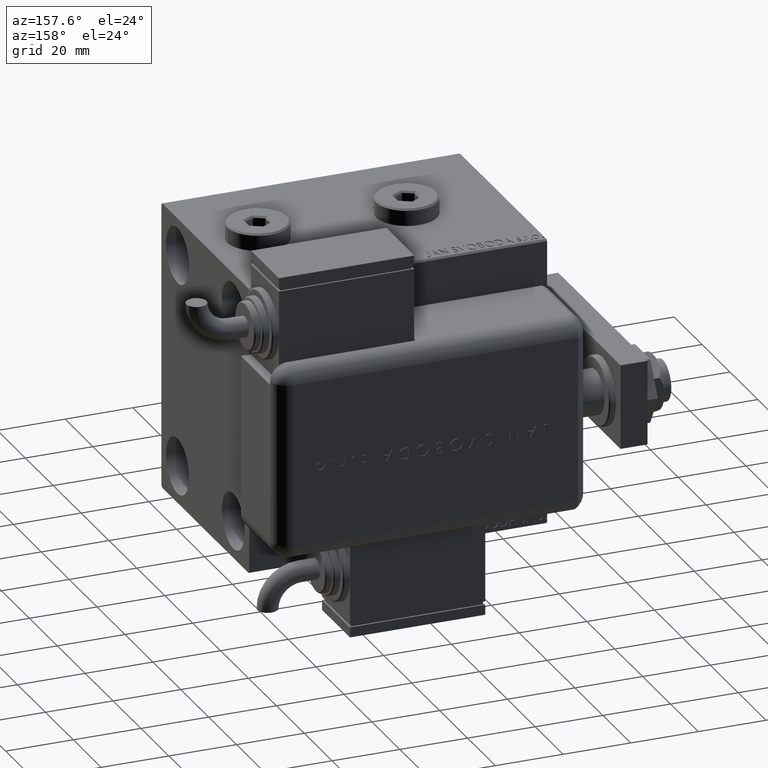
[diagram: clean part render]
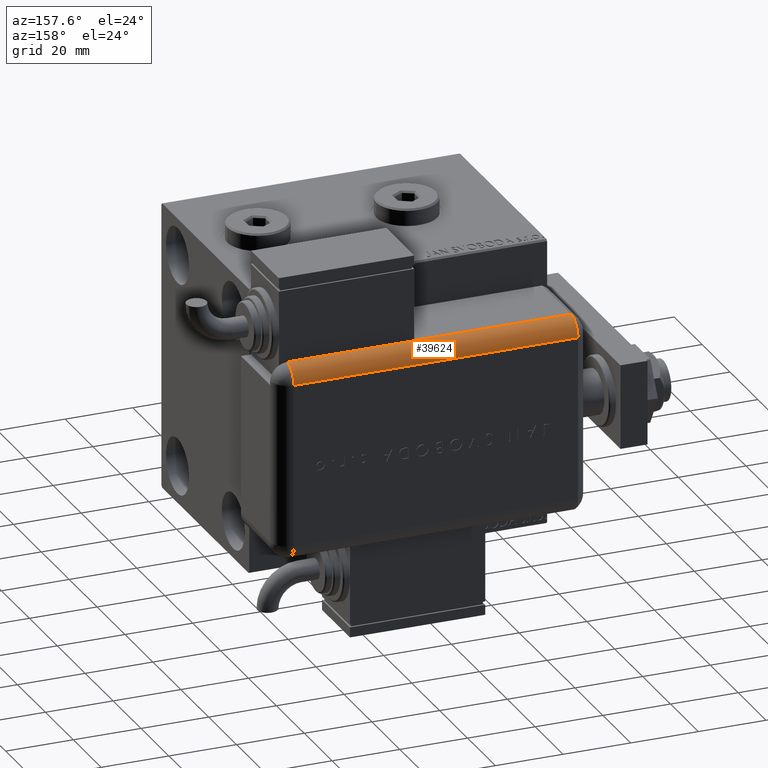
[diagram: same view with one face highlighted and labeled with its STEP entity id]
A machine part, auxiliary view. The second image highlights one B-rep face of the part: STEP entity #39624.
In plain terms, the highlighted cylindrical surface (edge-blend (fillet) strip) has radius 5 mm, axis along (1, -0, -0).
Its self-contained STEP definition (entity closure, byte-faithful):
#1074 = DIRECTION ( 'NONE',  ( -1.000000000000000000, 0.000000000000000000, 0.000000000000000000 ) ) ;
#2116 = LINE ( 'NONE', #57908, #35538 ) ;
#2652 = DIRECTION ( 'NONE',  ( -0.000000000000000000, -0.000000000000000000, 1.000000000000000000 ) ) ;
#3068 = CARTESIAN_POINT ( 'NONE',  ( 28.99999999999999645, 20.79999999999998295, 89.00000000000000000 ) ) ;
#4163 = CARTESIAN_POINT ( 'NONE',  ( 28.99599839871871154, 20.99999999999998579, 89.00000000000000000 ) ) ;
#4927 = VERTEX_POINT ( 'NONE', #5008 ) ;
#5008 = CARTESIAN_POINT ( 'NONE',  ( 28.99999999999999645, 20.79999999999998295, 89.00000000000000000 ) ) ;
#5177 = AXIS2_PLACEMENT_3D ( 'NONE', #47590, #9681, #42670 ) ;
#5309 = VERTEX_POINT ( 'NONE', #60571 ) ;
#5593 = AXIS2_PLACEMENT_3D ( 'NONE', #24508, #48257, #1074 ) ;
#6576 = FACE_OUTER_BOUND ( 'NONE', #57941, .T. ) ;
#8887 = AXIS2_PLACEMENT_3D ( 'NONE', #17134, #2652, #50125 ) ;
#9681 = DIRECTION ( 'NONE',  ( -0.000000000000000000, 0.000000000000000000, -1.000000000000000000 ) ) ;
#11812 = ORIENTED_EDGE ( 'NONE', *, *, #52841, .F. ) ;
#16150 = CARTESIAN_POINT ( 'NONE',  ( 28.99599839871871154, 20.99999999999999289, 43.00000000000000000 ) ) ;
#16758 = CIRCLE ( 'NONE', #8887, 5.000000000000000888 ) ;
#17134 = CARTESIAN_POINT ( 'NONE',  ( 23.99999999999999289, 20.79999999999998295, 5.000000000000004441 ) ) ;
#17570 = LINE ( 'NONE', #3068, #41360 ) ;
#18057 = EDGE_CURVE ( 'NONE', #4927, #57442, #37114, .T. ) ;
#18368 = CARTESIAN_POINT ( 'NONE',  ( 28.99999999999999645, 20.79999999999998295, 43.00000000000000000 ) ) ;
#18858 = EDGE_CURVE ( 'NONE', #5309, #50400, #37172, .T. ) ;
#19212 = ORIENTED_EDGE ( 'NONE', *, *, #26527, .T. ) ;
#20747 = DIRECTION ( 'NONE',  ( 0.000000000000000000, 0.000000000000000000, -1.000000000000000000 ) ) ;
#21497 = ORIENTED_EDGE ( 'NONE', *, *, #41303, .F. ) ;
#22614 = ORIENTED_EDGE ( 'NONE', *, *, #18858, .F. ) ;
#23861 = CARTESIAN_POINT ( 'NONE',  ( 23.99999999999999289, 25.79999999999998295, 5.000000000000004441 ) ) ;
#24508 = CARTESIAN_POINT ( 'NONE',  ( 23.99999999999999289, 20.79999999999998295, 89.00000000000000000 ) ) ;
#25367 = CYLINDRICAL_SURFACE ( 'NONE', #26081, 5.000000000000000888 ) ;
#26081 = AXIS2_PLACEMENT_3D ( 'NONE', #44200, #20747, #58653 ) ;
#26527 = EDGE_CURVE ( 'NONE', #5309, #58328, #16758, .T. ) ;
#26852 = ORIENTED_EDGE ( 'NONE', *, *, #18057, .F. ) ;
#27261 = VECTOR ( 'NONE', #36850, 1000.000000000000000 ) ;
#34180 = DIRECTION ( 'NONE',  ( 0.000000000000000000, 0.000000000000000000, -1.000000000000000000 ) ) ;
#35538 = VECTOR ( 'NONE', #34180, 1000.000000000000000 ) ;
#36693 = CARTESIAN_POINT ( 'NONE',  ( 23.99999999999999289, 25.79999999999998295, 89.00000000000000000 ) ) ;
#36850 = DIRECTION ( 'NONE',  ( -0.000000000000000000, -0.000000000000000000, 1.000000000000000000 ) ) ;
#37114 = CIRCLE ( 'NONE', #5593, 5.000000000000000888 ) ;
#37172 = LINE ( 'NONE', #4163, #27261 ) ;
#39624 = ADVANCED_FACE ( 'NONE', ( #6576 ), #25367, .T. ) ;
#41303 = EDGE_CURVE ( 'NONE', #50996, #4927, #17570, .T. ) ;
#41360 = VECTOR ( 'NONE', #59479, 1000.000000000000000 ) ;
#42670 = DIRECTION ( 'NONE',  ( 1.000000000000000000, -6.383782391594648845E-14, 0.000000000000000000 ) ) ;
#43989 = EDGE_CURVE ( 'NONE', #57442, #58328, #2116, .T. ) ;
#44200 = CARTESIAN_POINT ( 'NONE',  ( 23.99999999999999289, 20.79999999999998295, 89.00000000000000000 ) ) ;
#47590 = CARTESIAN_POINT ( 'NONE',  ( 23.99999999999999289, 20.79999999999998295, 43.00000000000000000 ) ) ;
#48257 = DIRECTION ( 'NONE',  ( -0.000000000000000000, -0.000000000000000000, 1.000000000000000000 ) ) ;
#50125 = DIRECTION ( 'NONE',  ( -1.000000000000000000, 0.000000000000000000, 0.000000000000000000 ) ) ;
#50400 = VERTEX_POINT ( 'NONE', #16150 ) ;
#50996 = VERTEX_POINT ( 'NONE', #18368 ) ;
#52841 = EDGE_CURVE ( 'NONE', #50400, #50996, #58311, .T. ) ;
#56067 = ORIENTED_EDGE ( 'NONE', *, *, #43989, .F. ) ;
#57442 = VERTEX_POINT ( 'NONE', #36693 ) ;
#57908 = CARTESIAN_POINT ( 'NONE',  ( 23.99999999999999289, 25.79999999999998295, 89.00000000000000000 ) ) ;
#57941 = EDGE_LOOP ( 'NONE', ( #11812, #22614, #19212, #56067, #26852, #21497 ) ) ;
#58311 = CIRCLE ( 'NONE', #5177, 5.000000000000000888 ) ;
#58328 = VERTEX_POINT ( 'NONE', #23861 ) ;
#58653 = DIRECTION ( 'NONE',  ( -1.000000000000000000, 0.000000000000000000, 0.000000000000000000 ) ) ;
#59479 = DIRECTION ( 'NONE',  ( -0.000000000000000000, -0.000000000000000000, 1.000000000000000000 ) ) ;
#60571 = CARTESIAN_POINT ( 'NONE',  ( 28.99599839871871154, 21.00000000000000000, 5.000000000000004441 ) ) ;